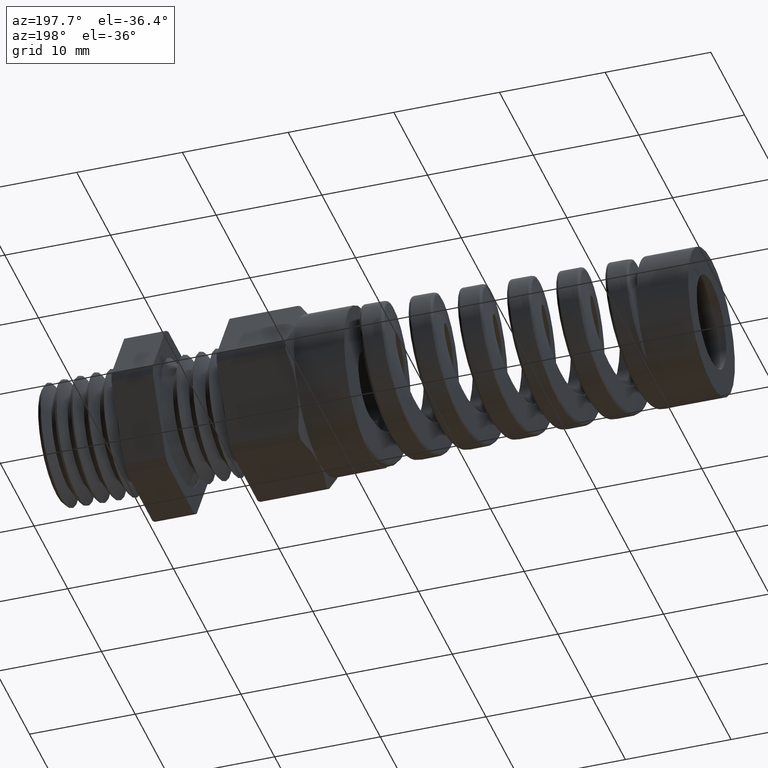
[diagram: clean part render]
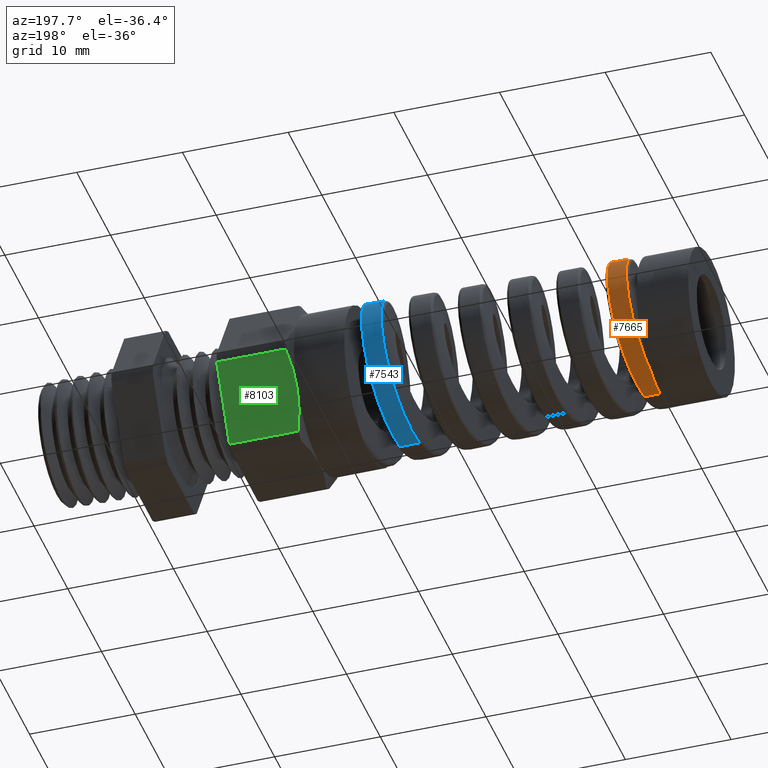
[diagram: same view with three faces highlighted in distinct colors, each labeled with its STEP entity id]
A machine part, auxiliary view with three faces highlighted in distinct colors.
Their STEP definitions:

[orange] entity #7665 — the highlighted conical surface has half-angle 1 deg.
#1151 = CARTESIAN_POINT ( 'NONE',  ( -1.938299999999999900, 0.0000000000000000000, -0.2728399223203811800 ) ) ;
#1152 = DIRECTION ( 'NONE',  ( 0.0000000000000000000, 0.0000000000000000000, -1.000000000000000000 ) ) ;
#1153 = DIRECTION ( 'NONE',  ( 1.000000000000000000, 0.0000000000000000000, 0.0000000000000000000 ) ) ;
#1154 = CARTESIAN_POINT ( 'NONE',  ( -1.938299999999999900, 0.0000000000000000000, 0.0000000000000000000 ) ) ;
#1155 = AXIS2_PLACEMENT_3D ( 'NONE', #1154, #1153, #1152 ) ;
#1156 = CIRCLE ( 'NONE', #1155, 0.2728399223203811800 ) ;
#1157 = CARTESIAN_POINT ( 'NONE',  ( -1.938299999999999900, 0.1106353233695262600, -0.2494021820969335200 ) ) ;
#1276 = CARTESIAN_POINT ( 'NONE',  ( -1.905439451678035700, 0.2738149480534820500, -0.004452913156416341000 ) ) ;
#1277 = CARTESIAN_POINT ( 'NONE',  ( -1.907066482417727900, 0.2731027601729805200, -0.01988233844168919900 ) ) ;
#1278 = CARTESIAN_POINT ( 'NONE',  ( -1.910345299395481000, 0.2690395193802520000, -0.05066431239589709600 ) ) ;
#1279 = CARTESIAN_POINT ( 'NONE',  ( -1.912002045236656600, 0.2656466173702822800, -0.06605829844452368300 ) ) ;
#1280 = CARTESIAN_POINT ( 'NONE',  ( -1.915269258079506300, 0.2564365743263465300, -0.09560825569073790100 ) ) ;
#1281 = CARTESIAN_POINT ( 'NONE',  ( -1.916895272459205700, 0.2506105983874897200, -0.1099136750738140000 ) ) ;
#1282 = CARTESIAN_POINT ( 'NONE',  ( -1.920183099516601400, 0.2364943219689890600, -0.1375709559826353800 ) ) ;
#1283 = CARTESIAN_POINT ( 'NONE',  ( -1.921849777581935400, 0.2281530634236813600, -0.1509437390107536400 ) ) ;
#1284 = CARTESIAN_POINT ( 'NONE',  ( -1.925137740178190800, 0.2095985770310637700, -0.1757126122337076000 ) ) ;
#1285 = CARTESIAN_POINT ( 'NONE',  ( -1.926774649065753100, 0.1993263578896865300, -0.1872473119326434900 ) ) ;
#1286 = CARTESIAN_POINT ( 'NONE',  ( -1.930065398501582300, 0.1767729000465227400, -0.2085965742502022300 ) ) ;
#1287 = CARTESIAN_POINT ( 'NONE',  ( -1.931725426184241400, 0.1644451075771035900, -0.2184103308346965500 ) ) ;
#1288 = CARTESIAN_POINT ( 'NONE',  ( -1.935006945431941600, 0.1385885753927455500, -0.2355996749968421500 ) ) ;
#1289 = CARTESIAN_POINT ( 'NONE',  ( -1.936642463691468500, 0.1249670026701007200, -0.2430762708889660200 ) ) ;
#1290 = CARTESIAN_POINT ( 'NONE',  ( -1.938299999999999900, 0.1106353233695262600, -0.2494021820969335200 ) ) ;
#1291 = B_SPLINE_CURVE_WITH_KNOTS ( 'NONE', 3,
 ( #1290, #1289, #1288, #1287, #1286, #1285, #1284, #1283, #1282, #1281, #1280, #1279, #1278, #1277, #1276, #1348, #1347, #1346, #1345, #1344, #1343, #1342, #1341, #1340, #1339, #1338, #1337, #1336, #1335, #1334, #1333, #1332, #1331, #1330 ),
 .UNSPECIFIED., .F., .F.,
 ( 4, 2, 2, 2, 2, 2, 2, 2, 2, 2, 2, 2, 2, 2, 2, 2, 4 ),
 ( 0.0000000000000000000, 0.001188946467293634700, 0.002377892934587269500, 0.003566839401880904500, 0.004755785869174538100, 0.005944732336468171300, 0.007133678803761806300, 0.008322625271055438700, 0.009511571738349072800, 0.01070051820564270700, 0.01188946467293634100, 0.01307841114022997700, 0.01426735760752361300, 0.01545630407481724700, 0.01664525054211088100, 0.01783419700940451800, 0.01902314347669814900 ),
 .UNSPECIFIED. ) ;
#1292 = CARTESIAN_POINT ( 'NONE',  ( -1.859537822061088300, 7.907822410224630800E-013, 0.2742147212501926900 ) ) ;
#1310 = CARTESIAN_POINT ( 'NONE',  ( -1.811052529577027200, 0.1878717124949873500, 0.2011070847209295900 ) ) ;
#1311 = CARTESIAN_POINT ( 'NONE',  ( -1.810094307678701300, 0.1811246755057290500, 0.2072261204132506700 ) ) ;
#1312 = CARTESIAN_POINT ( 'NONE',  ( -1.808197431520642200, 0.1672093267486381200, 0.2186505680430578500 ) ) ;
#1313 = CARTESIAN_POINT ( 'NONE',  ( -1.807253978716629700, 0.1600106884642199500, 0.2239902815978343200 ) ) ;
#1314 = CARTESIAN_POINT ( 'NONE',  ( -1.804424291318155800, 0.1377068756137268800, 0.2389123389785969600 ) ) ;
#1315 = CARTESIAN_POINT ( 'NONE',  ( -1.802532695116738000, 0.1218496140468363200, 0.2474293084879173300 ) ) ;
#1316 = CARTESIAN_POINT ( 'NONE',  ( -1.798708452852878300, 0.08838982860329582000, 0.2613284822181650100 ) ) ;
#1317 = CARTESIAN_POINT ( 'NONE',  ( -1.796829817295943800, 0.07124090370289538900, 0.2665339025294659600 ) ) ;
#1318 = CARTESIAN_POINT ( 'NONE',  ( -1.794004279107410400, 0.04491716905868020600, 0.2718177865085914000 ) ) ;
#1319 = CARTESIAN_POINT ( 'NONE',  ( -1.793061085595874600, 0.03604182048022972600, 0.2731553437473576700 ) ) ;
#1320 = CARTESIAN_POINT ( 'NONE',  ( -1.791161897892599800, 0.01808565047921177600, 0.2749618566264603300 ) ) ;
#1321 = CARTESIAN_POINT ( 'NONE',  ( -1.790204866449210700, 0.008994899455448721000, 0.2754249324920806100 ) ) ;
#1322 = CARTESIAN_POINT ( 'NONE',  ( -1.789257497916606000, -5.334496850974723200E-013, 0.2754414688713108200 ) ) ;
#1323 = B_SPLINE_CURVE_WITH_KNOTS ( 'NONE', 3,
 ( #1322, #1321, #1320, #1319, #1318, #1317, #1316, #1315, #1314, #1313, #1312, #1311, #1310, #1391, #1390, #1389, #1388, #1387, #1386, #1385, #1384, #1383, #1382, #1381, #1380, #1379, #1378, #1377, #1376, #1375, #1374, #1373, #1372, #1371, #1370, #1369, #1368, #1367, #1366, #1365, #1364, #1363, #1362, #1361, #1360 ),
 .UNSPECIFIED., .F., .F.,
 ( 4, 2, 2, 2, 2, 2, 2, 2, 2, 2, 2, 2, 2, 2, 2, 2, 2, 2, 2, 2, 1, 2, 4 ),
 ( 0.2322916268360479800, 0.2329790355535165100, 0.2336664442709850700, 0.2350412617059221300, 0.2364160791408592100, 0.2371034878583277400, 0.2377908965757962700, 0.2391657140107333600, 0.2405405314456704200, 0.2419153488806075100, 0.2426027575980760400, 0.2432901663155445600, 0.2446649837504816500, 0.2460398011854187100, 0.2467272099028872400, 0.2474146186203557700, 0.2487894360552928600, 0.2501642534902299200, 0.2515390709251669700, 0.2522264796426355000, 0.2529138883601040300, 0.2536012970775725600, 0.2542887057950410900 ),
 .UNSPECIFIED. ) ;
#1324 = CARTESIAN_POINT ( 'NONE',  ( -1.880397292627462800, 7.986813722271994800E-013, -0.2738506178370884200 ) ) ;
#1325 = CARTESIAN_POINT ( 'NONE',  ( -1.789257497916606000, -5.334496850974723200E-013, 0.2754414688713108200 ) ) ;
#1326 = DIRECTION ( 'NONE',  ( 0.9998476951563912700, 2.137303368083806700E-018, 0.01745240643728363700 ) ) ;
#1327 = VECTOR ( 'NONE', #1326, 39.37007874015748100 ) ;
#1328 = CARTESIAN_POINT ( 'NONE',  ( -0.6687499999999999600, 3.612708057484692000E-017, 0.2949999999999999800 ) ) ;
#1329 = LINE ( 'NONE', #1328, #1327 ) ;
#1330 = CARTESIAN_POINT ( 'NONE',  ( -1.859537822061088300, 7.907822410224630800E-013, 0.2742147212501926900 ) ) ;
#1331 = CARTESIAN_POINT ( 'NONE',  ( -1.861175974527939700, 0.01552082260280075700, 0.2741861271924767000 ) ) ;
#1332 = CARTESIAN_POINT ( 'NONE',  ( -1.862830824008591100, 0.03122685274429980200, 0.2728125112849517600 ) ) ;
#1333 = CARTESIAN_POINT ( 'NONE',  ( -1.866089015243926900, 0.06172639058723187300, 0.2675078594681791800 ) ) ;
#1334 = CARTESIAN_POINT ( 'NONE',  ( -1.867707609369112700, 0.07666657417242399300, 0.2635880724837861300 ) ) ;
#1335 = CARTESIAN_POINT ( 'NONE',  ( -1.870976404588511100, 0.1059170210809850800, 0.2531931041089889300 ) ) ;
#1336 = CARTESIAN_POINT ( 'NONE',  ( -1.872632946254698700, 0.1202679212425340800, 0.2466649614789461500 ) ) ;
#1337 = CARTESIAN_POINT ( 'NONE',  ( -1.875904344920384900, 0.1472553414256722900, 0.2315006548783594400 ) ) ;
#1338 = CARTESIAN_POINT ( 'NONE',  ( -1.877534384101424500, 0.1600340694797226000, 0.2228262120752794200 ) ) ;
#1339 = CARTESIAN_POINT ( 'NONE',  ( -1.880823423924346400, 0.1841457645961217000, 0.2032764506096124700 ) ) ;
#1340 = CARTESIAN_POINT ( 'NONE',  ( -1.882486854334295900, 0.1954987486353335100, 0.1923382218657625200 ) ) ;
#1341 = CARTESIAN_POINT ( 'NONE',  ( -1.885754506707215700, 0.2158859269032338300, 0.1690437428772035000 ) ) ;
#1342 = CARTESIAN_POINT ( 'NONE',  ( -1.887376316624851200, 0.2250413981952761900, 0.1566038538322373800 ) ) ;
#1343 = CARTESIAN_POINT ( 'NONE',  ( -1.890647547169620200, 0.2412542061332222900, 0.1301289731088685900 ) ) ;
#1344 = CARTESIAN_POINT ( 'NONE',  ( -1.892302985178216900, 0.2483083492126324200, 0.1160297350054587000 ) ) ;
#1345 = CARTESIAN_POINT ( 'NONE',  ( -1.895571032144466500, 0.2597553353178774200, 0.08726904019898709700 ) ) ;
#1346 = CARTESIAN_POINT ( 'NONE',  ( -1.897198950878898000, 0.2642349815260081600, 0.07248751448186496700 ) ) ;
#1347 = CARTESIAN_POINT ( 'NONE',  ( -1.900489152843510600, 0.2706826317505971500, 0.04211959414852168400 ) ) ;
#1348 = CARTESIAN_POINT ( 'NONE',  ( -1.902157128669427700, 0.2726257212009149900, 0.02647646281857349300 ) ) ;
#1355 = DIRECTION ( 'NONE',  ( 0.9998476951563912700, 0.0000000000000000000, -0.01745240643728363700 ) ) ;
#1356 = VECTOR ( 'NONE', #1355, 39.37007874015748100 ) ;
#1357 = CARTESIAN_POINT ( 'NONE',  ( -0.6687499999999999600, 0.0000000000000000000, -0.2949999999999999800 ) ) ;
#1358 = LINE ( 'NONE', #1357, #1356 ) ;
#1360 = CARTESIAN_POINT ( 'NONE',  ( -1.880397292627462800, 7.986813722271994800E-013, -0.2738506178370884200 ) ) ;
#1361 = CARTESIAN_POINT ( 'NONE',  ( -1.879441323907888000, 0.009035076043609370800, -0.2738673043331317800 ) ) ;
#1362 = CARTESIAN_POINT ( 'NONE',  ( -1.878480989115157900, 0.01811272896048716400, -0.2734321781817059500 ) ) ;
#1363 = CARTESIAN_POINT ( 'NONE',  ( -1.876578892180101400, 0.03599973885330767100, -0.2716899583969660800 ) ) ;
#1364 = CARTESIAN_POINT ( 'NONE',  ( -1.874685020807145500, 0.05371642535597508100, -0.2690778936579639200 ) ) ;
#1365 = CARTESIAN_POINT ( 'NONE',  ( -1.872788898941698800, 0.07109534606071302200, -0.2647510827272057100 ) ) ;
#1366 = CARTESIAN_POINT ( 'NONE',  ( -1.870883145222093500, 0.08830206603270264500, -0.2595547310777681600 ) ) ;
#1367 = CARTESIAN_POINT ( 'NONE',  ( -1.869920182362830200, 0.09686496764343990900, -0.2565017058582775800 ) ) ;
#1368 = CARTESIAN_POINT ( 'NONE',  ( -1.867048334361155500, 0.1219057775104809000, -0.2461446206404371600 ) ) ;
#1369 = CARTESIAN_POINT ( 'NONE',  ( -1.865164656478321300, 0.1376937730764256900, -0.2376998350688437300 ) ) ;
#1370 = CARTESIAN_POINT ( 'NONE',  ( -1.861377854837690900, 0.1674962788476769800, -0.2178119033904975500 ) ) ;
#1371 = CARTESIAN_POINT ( 'NONE',  ( -1.859454776228417300, 0.1816338695850374100, -0.2062183779138027100 ) ) ;
#1372 = CARTESIAN_POINT ( 'NONE',  ( -1.855654898396962300, 0.2070198263395654800, -0.1808205016198343500 ) ) ;
#1373 = CARTESIAN_POINT ( 'NONE',  ( -1.853768304886146200, 0.2183707508137006600, -0.1669937319948854600 ) ) ;
#1374 = CARTESIAN_POINT ( 'NONE',  ( -1.850910901360008000, 0.2333686985701090800, -0.1445555436720726800 ) ) ;
#1375 = CARTESIAN_POINT ( 'NONE',  ( -1.849949166933615700, 0.2380491144330648100, -0.1367462139948146500 ) ) ;
#1376 = CARTESIAN_POINT ( 'NONE',  ( -1.848042755154256600, 0.2465463270156348100, -0.1208307851533760400 ) ) ;
#1377 = CARTESIAN_POINT ( 'NONE',  ( -1.847096325490780400, 0.2503761655892540200, -0.1127152095904950100 ) ) ;
#1378 = CARTESIAN_POINT ( 'NONE',  ( -1.844261972335987700, 0.2606387988428403000, -0.08790768091900300100 ) ) ;
#1379 = CARTESIAN_POINT ( 'NONE',  ( -1.842379046258525900, 0.2658565059942549800, -0.07075934350283169500 ) ) ;
#1380 = CARTESIAN_POINT ( 'NONE',  ( -1.838547683273602700, 0.2729174784297733700, -0.03520423437921468800 ) ) ;
#1381 = CARTESIAN_POINT ( 'NONE',  ( -1.836653782690795200, 0.2746514738814182500, -0.01730868315591895700 ) ) ;
#1382 = CARTESIAN_POINT ( 'NONE',  ( -1.833815438027464300, 0.2746441262994722100, 0.009527688159592751600 ) ) ;
#1383 = CARTESIAN_POINT ( 'NONE',  ( -1.832869304493337100, 0.2742056764216260800, 0.01848173670083249800 ) ) ;
#1384 = CARTESIAN_POINT ( 'NONE',  ( -1.830967985960742400, 0.2724392305368079100, 0.03640640486281426800 ) ) ;
#1385 = CARTESIAN_POINT ( 'NONE',  ( -1.830008209651309900, 0.2710998634801948800, 0.04541717069093149900 ) ) ;
#1386 = CARTESIAN_POINT ( 'NONE',  ( -1.827157323377790200, 0.2658106516575075000, 0.07192688823668219600 ) ) ;
#1387 = CARTESIAN_POINT ( 'NONE',  ( -1.825279707286234300, 0.2606038741656432300, 0.08904664076717851200 ) ) ;
#1388 = CARTESIAN_POINT ( 'NONE',  ( -1.821492888475293700, 0.2468808426591881100, 0.1221878354856635600 ) ) ;
#1389 = CARTESIAN_POINT ( 'NONE',  ( -1.819568129171177200, 0.2382564752606451400, 0.1383190546853984600 ) ) ;
#1390 = CARTESIAN_POINT ( 'NONE',  ( -1.815779270211344900, 0.2183269064215492800, 0.1681310136171447500 ) ) ;
#1391 = CARTESIAN_POINT ( 'NONE',  ( -1.813901671323727000, 0.2069837939809914000, 0.1819725066030395400 ) ) ;
#1625 = DIRECTION ( 'NONE',  ( 0.0000000000000000000, 0.0000000000000000000, -1.000000000000000000 ) ) ;
#1626 = DIRECTION ( 'NONE',  ( 1.000000000000000000, 0.0000000000000000000, 0.0000000000000000000 ) ) ;
#1627 = CARTESIAN_POINT ( 'NONE',  ( -0.6687499999999999600, 0.0000000000000000000, 0.0000000000000000000 ) ) ;
#1628 = AXIS2_PLACEMENT_3D ( 'NONE', #1627, #1626, #1625 ) ;
#1629 = CONICAL_SURFACE ( 'NONE', #1628, 0.2949999999999999800, 0.01745329251994342000 ) ;
#1631 = FACE_OUTER_BOUND ( 'NONE', #7666, .T. ) ;
#7563 = VERTEX_POINT ( 'NONE', #1157 ) ;
#7565 = EDGE_CURVE ( 'NONE', #7566, #7563, #1156, .T. ) ;
#7566 = VERTEX_POINT ( 'NONE', #1151 ) ;
#7607 = ORIENTED_EDGE ( 'NONE', *, *, #7608, .T. ) ;
#7608 = EDGE_CURVE ( 'NONE', #7563, #7609, #1291, .T. ) ;
#7609 = VERTEX_POINT ( 'NONE', #1292 ) ;
#7610 = ORIENTED_EDGE ( 'NONE', *, *, #7611, .T. ) ;
#7611 = EDGE_CURVE ( 'NONE', #7609, #7614, #1329, .T. ) ;
#7614 = VERTEX_POINT ( 'NONE', #1325 ) ;
#7615 = ORIENTED_EDGE ( 'NONE', *, *, #7616, .T. ) ;
#7616 = EDGE_CURVE ( 'NONE', #7614, #7617, #1323, .T. ) ;
#7617 = VERTEX_POINT ( 'NONE', #1324 ) ;
#7618 = ORIENTED_EDGE ( 'NONE', *, *, #7619, .F. ) ;
#7619 = EDGE_CURVE ( 'NONE', #7566, #7617, #1358, .T. ) ;
#7620 = ORIENTED_EDGE ( 'NONE', *, *, #7565, .T. ) ;
#7665 = ADVANCED_FACE ( 'NONE', ( #1631 ), #1629, .T. ) ;
#7666 = EDGE_LOOP ( 'NONE', ( #7607, #7610, #7615, #7618, #7620 ) ) ;

[blue] entity #7543 — the highlighted conical surface has half-angle 1 deg.
#975 = CONICAL_SURFACE ( 'NONE', #1053, 0.2949999999999999800, 0.01745329251994342000 ) ;
#976 = FACE_OUTER_BOUND ( 'NONE', #7544, .T. ) ;
#1050 = DIRECTION ( 'NONE',  ( 0.0000000000000000000, 0.0000000000000000000, -1.000000000000000000 ) ) ;
#1051 = DIRECTION ( 'NONE',  ( 1.000000000000000000, 0.0000000000000000000, 0.0000000000000000000 ) ) ;
#1052 = CARTESIAN_POINT ( 'NONE',  ( -0.6687499999999999600, 0.0000000000000000000, 0.0000000000000000000 ) ) ;
#1053 = AXIS2_PLACEMENT_3D ( 'NONE', #1052, #1051, #1050 ) ;
#1215 = CARTESIAN_POINT ( 'NONE',  ( -0.9689572109277786400, 3.792663028186239900E-018, -0.2897598636413364300 ) ) ;
#1240 = DIRECTION ( 'NONE',  ( 0.9998476951563912700, 0.0000000000000000000, -0.01745240643728363700 ) ) ;
#1241 = VECTOR ( 'NONE', #1240, 39.37007874015748100 ) ;
#1242 = CARTESIAN_POINT ( 'NONE',  ( -0.6687499999999999600, 0.0000000000000000000, -0.2949999999999999800 ) ) ;
#1243 = LINE ( 'NONE', #1242, #1241 ) ;
#1244 = DIRECTION ( 'NONE',  ( 0.9998476951563912700, 2.137303368083806700E-018, 0.01745240643728363700 ) ) ;
#1245 = VECTOR ( 'NONE', #1244, 39.37007874015748100 ) ;
#1246 = CARTESIAN_POINT ( 'NONE',  ( -0.6687499999999999600, 3.612708057484692000E-017, 0.2949999999999999800 ) ) ;
#1247 = LINE ( 'NONE', #1246, #1245 ) ;
#1248 = CARTESIAN_POINT ( 'NONE',  ( -0.8778180071945355100, -9.270406533085213400E-013, 0.2913507043600062600 ) ) ;
#7507 = EDGE_CURVE ( 'NONE', #7508, #7509, #8792, .T. ) ;
#7508 = VERTEX_POINT ( 'NONE', #8793 ) ;
#7509 = VERTEX_POINT ( 'NONE', #8791 ) ;
#7517 = EDGE_CURVE ( 'NONE', #7591, #7585, #8695, .T. ) ;
#7518 = ORIENTED_EDGE ( 'NONE', *, *, #7592, .T. ) ;
#7543 = ADVANCED_FACE ( 'NONE', ( #976 ), #975, .T. ) ;
#7544 = EDGE_LOOP ( 'NONE', ( #7556, #7518, #7593, #7582 ) ) ;
#7556 = ORIENTED_EDGE ( 'NONE', *, *, #7507, .T. ) ;
#7582 = ORIENTED_EDGE ( 'NONE', *, *, #7595, .F. ) ;
#7585 = VERTEX_POINT ( 'NONE', #1215 ) ;
#7591 = VERTEX_POINT ( 'NONE', #1248 ) ;
#7592 = EDGE_CURVE ( 'NONE', #7509, #7591, #1247, .T. ) ;
#7593 = ORIENTED_EDGE ( 'NONE', *, *, #7517, .T. ) ;
#7595 = EDGE_CURVE ( 'NONE', #7508, #7585, #1243, .T. ) ;
#8651 = CARTESIAN_POINT ( 'NONE',  ( -0.9689572109277786400, 3.792663028186239900E-018, -0.2897598636413364300 ) ) ;
#8652 = CARTESIAN_POINT ( 'NONE',  ( -0.9680096248986108700, 0.009464309722969285700, -0.2897764038170005900 ) ) ;
#8653 = CARTESIAN_POINT ( 'NONE',  ( -0.9670629622379833800, 0.01892926827054985600, -0.2893303463504316400 ) ) ;
#8654 = CARTESIAN_POINT ( 'NONE',  ( -0.9651613584811730200, 0.03785947989082565100, -0.2875000267339442000 ) ) ;
#8655 = CARTESIAN_POINT ( 'NONE',  ( -0.9642012179928067800, 0.04737568413142707900, -0.2861045936396723900 ) ) ;
#8656 = CARTESIAN_POINT ( 'NONE',  ( -0.9613340549538279500, 0.07551118195094946900, -0.2805379939129435400 ) ) ;
#8657 = CARTESIAN_POINT ( 'NONE',  ( -0.9594479596328623300, 0.09364340067380096100, -0.2750404188034712400 ) ) ;
#8658 = CARTESIAN_POINT ( 'NONE',  ( -0.9556510003372242800, 0.1286835969632671700, -0.2605672371590107600 ) ) ;
#8659 = CARTESIAN_POINT ( 'NONE',  ( -0.9537199939503202600, 0.1457518686705630800, -0.2514605582394069400 ) ) ;
#8660 = CARTESIAN_POINT ( 'NONE',  ( -0.9499185753005633400, 0.1773509399723787200, -0.2303500744912158900 ) ) ;
#8661 = CARTESIAN_POINT ( 'NONE',  ( -0.9480379423426095200, 0.1919894100563697700, -0.2183462463181449500 ) ) ;
#8662 = CARTESIAN_POINT ( 'NONE',  ( -0.9451859923922226700, 0.2121908729560311700, -0.1981591960240665100 ) ) ;
#8663 = CARTESIAN_POINT ( 'NONE',  ( -0.9442249074184346800, 0.2186617527356573300, -0.1910217692051229500 ) ) ;
#8664 = CARTESIAN_POINT ( 'NONE',  ( -0.9423168809246096300, 0.2307691579107511400, -0.1762589140654732000 ) ) ;
#8665 = CARTESIAN_POINT ( 'NONE',  ( -0.9413684814935221500, 0.2364204027996005500, -0.1686272546603341200 ) ) ;
#8666 = CARTESIAN_POINT ( 'NONE',  ( -0.9385263659204885500, 0.2521950701201866600, -0.1450007606628465300 ) ) ;
#8667 = CARTESIAN_POINT ( 'NONE',  ( -0.9366353464059989900, 0.2611508221661525400, -0.1282815233130307500 ) ) ;
#8668 = CARTESIAN_POINT ( 'NONE',  ( -0.9328014999292730800, 0.2758186335297580500, -0.09283772945531776300 ) ) ;
#8669 = CARTESIAN_POINT ( 'NONE',  ( -0.9309133608031176000, 0.2813114829856099800, -0.07462138069380032400 ) ) ;
#8670 = CARTESIAN_POINT ( 'NONE',  ( -0.9280803741544640900, 0.2868403070834378800, -0.04676568671512900500 ) ) ;
#8671 = CARTESIAN_POINT ( 'NONE',  ( -0.9271350100436195300, 0.2882322168184478000, -0.03738154651096889400 ) ) ;
#8672 = CARTESIAN_POINT ( 'NONE',  ( -0.9252323198920877600, 0.2900956211703301100, -0.01841243514094401500 ) ) ;
#8673 = CARTESIAN_POINT ( 'NONE',  ( -0.9242706504513356100, 0.2905635291813761200, -0.008783908923290150900 ) ) ;
#8674 = CARTESIAN_POINT ( 'NONE',  ( -0.9214122011269283400, 0.2905395394397162200, 0.01981939351009288600 ) ) ;
#8675 = CARTESIAN_POINT ( 'NONE',  ( -0.9195263982424500800, 0.2886643766946750400, 0.03866068531046686100 ) ) ;
#8676 = CARTESIAN_POINT ( 'NONE',  ( -0.9157357173825703100, 0.2812492255228270000, 0.07588878375735519400 ) ) ;
#8677 = CARTESIAN_POINT ( 'NONE',  ( -0.9138164172117696500, 0.2756198975479612900, 0.09440934232227796200 ) ) ;
#8678 = CARTESIAN_POINT ( 'NONE',  ( -0.9100350807574395500, 0.2610728308011036100, 0.1294558248428702200 ) ) ;
#8679 = CARTESIAN_POINT ( 'NONE',  ( -0.9081562751339841100, 0.2521481841649181300, 0.1461585836607349800 ) ) ;
#8680 = CARTESIAN_POINT ( 'NONE',  ( -0.9052991314418678000, 0.2362453802917046100, 0.1699561557432267300 ) ) ;
#8681 = CARTESIAN_POINT ( 'NONE',  ( -0.9043376743120731300, 0.2305013966602181800, 0.1776950562533560500 ) ) ;
#8682 = CARTESIAN_POINT ( 'NONE',  ( -0.9024349876498511900, 0.2184094563819417600, 0.1924137702889071900 ) ) ;
#8683 = CARTESIAN_POINT ( 'NONE',  ( -0.9014888272294838700, 0.2120362366923672400, 0.1994363879160670200 ) ) ;
#8684 = CARTESIAN_POINT ( 'NONE',  ( -0.8986556042199289600, 0.1919537640044018400, 0.2195120686158311400 ) ) ;
#8685 = CARTESIAN_POINT ( 'NONE',  ( -0.8967678312821439900, 0.1772344494114560200, 0.2316200967603322400 ) ) ;
#8686 = CARTESIAN_POINT ( 'NONE',  ( -0.8929520873036517200, 0.1453650557554533000, 0.2529183474965834300 ) ) ;
#8687 = CARTESIAN_POINT ( 'NONE',  ( -0.8910729294784836000, 0.1286346892808981100, 0.2618441904799545000 ) ) ;
#8688 = CARTESIAN_POINT ( 'NONE',  ( -0.8882398323327261900, 0.1023922983422137100, 0.2727357336618419500 ) ) ;
#8689 = CARTESIAN_POINT ( 'NONE',  ( -0.8872932272009593800, 0.09345230114137939600, 0.2759470516086454700 ) ) ;
#8690 = CARTESIAN_POINT ( 'NONE',  ( -0.8853872087172697200, 0.07517823212695588800, 0.2815097115262219000 ) ) ;
#8691 = CARTESIAN_POINT ( 'NONE',  ( -0.8844274246157102200, 0.06583895814186514800, 0.2838552587381728000 ) ) ;
#8692 = CARTESIAN_POINT ( 'NONE',  ( -0.8815814841475000400, 0.03784291792884004300, 0.2894427273431789400 ) ) ;
#8693 = CARTESIAN_POINT ( 'NONE',  ( -0.8797081464761402600, 0.01900565859019384300, 0.2913177118561829900 ) ) ;
#8694 = CARTESIAN_POINT ( 'NONE',  ( -0.8778180071945355100, -9.270406533085213400E-013, 0.2913507043600062600 ) ) ;
#8695 = B_SPLINE_CURVE_WITH_KNOTS ( 'NONE', 3,
 ( #8694, #8693, #8692, #8691, #8690, #8689, #8688, #8687, #8686, #8685, #8684, #8683, #8682, #8681, #8680, #8679, #8678, #8677, #8676, #8675, #8674, #8673, #8672, #8671, #8670, #8669, #8668, #8667, #8666, #8665, #8664, #8663, #8662, #8661, #8660, #8659, #8658, #8657, #8656, #8655, #8654, #8653, #8652, #8651 ),
 .UNSPECIFIED., .F., .F.,
 ( 4, 2, 2, 2, 2, 2, 2, 2, 2, 2, 2, 2, 2, 2, 2, 2, 2, 2, 2, 2, 2, 4 ),
 ( 0.005276724071332218800, 0.006731470201554021600, 0.007458843266664922500, 0.008186216331775825200, 0.009640962461997627100, 0.01109570859221942900, 0.01182308165733032800, 0.01255045472244122700, 0.01400520085266302900, 0.01545994698288482800, 0.01691469311310662600, 0.01764206617821752500, 0.01836943924332842500, 0.01982418537355022700, 0.02127893150377202200, 0.02200630456888292400, 0.02273367763399382700, 0.02418842376421563600, 0.02564316989443744800, 0.02709791602465925300, 0.02782528908977016300, 0.02855266215488106600 ),
 .UNSPECIFIED. ) ;
#8748 = CARTESIAN_POINT ( 'NONE',  ( -0.9509666174168534000, 1.061582331348332100E-015, 0.2900738906191667700 ) ) ;
#8749 = CARTESIAN_POINT ( 'NONE',  ( -0.9528535394784578600, 0.01894958004030900300, 0.2900409542720668300 ) ) ;
#8750 = CARTESIAN_POINT ( 'NONE',  ( -0.9547211398476896900, 0.03770301786344360700, 0.2881688757655554400 ) ) ;
#8751 = CARTESIAN_POINT ( 'NONE',  ( -0.9584950806256377100, 0.07481159513546401000, 0.2807629602471969900 ) ) ;
#8752 = CARTESIAN_POINT ( 'NONE',  ( -0.9604102310847761900, 0.09323581320859779300, 0.2751553396249820600 ) ) ;
#8753 = CARTESIAN_POINT ( 'NONE',  ( -0.9641811543460469000, 0.1280942962258821700, 0.2606857663479752500 ) ) ;
#8754 = CARTESIAN_POINT ( 'NONE',  ( -0.9660537568726318400, 0.1447351541925503100, 0.2518019922875582800 ) ) ;
#8755 = CARTESIAN_POINT ( 'NONE',  ( -0.9689000058533608900, 0.1684771673078397900, 0.2359393790400632900 ) ) ;
#8756 = CARTESIAN_POINT ( 'NONE',  ( -0.9698533453092014200, 0.1761668709731106200, 0.2302316025172263800 ) ) ;
#8757 = CARTESIAN_POINT ( 'NONE',  ( -0.9717414655546624500, 0.1908007543334490900, 0.2182139594662359000 ) ) ;
#8758 = CARTESIAN_POINT ( 'NONE',  ( -0.9736213670493286700, 0.2047768492515007200, 0.2055382456545048200 ) ) ;
#8759 = CARTESIAN_POINT ( 'NONE',  ( -0.9755038797376560700, 0.2174546359168538500, 0.1915663363924563500 ) ) ;
#8760 = CARTESIAN_POINT ( 'NONE',  ( -0.9773964441660546500, 0.2294734593570040300, 0.1769377734515153200 ) ) ;
#8761 = CARTESIAN_POINT ( 'NONE',  ( -0.9783528544151126600, 0.2351809614717241000, 0.1692521888152501200 ) ) ;
#8762 = CARTESIAN_POINT ( 'NONE',  ( -0.9812093022156439500, 0.2510511202522264200, 0.1455084930351555900 ) ) ;
#8763 = CARTESIAN_POINT ( 'NONE',  ( -0.9830843103589351800, 0.2599369456546024600, 0.1288674023985016100 ) ) ;
#8764 = CARTESIAN_POINT ( 'NONE',  ( -0.9868503315297079100, 0.2744049253179857200, 0.09401011342963855300 ) ) ;
#8765 = CARTESIAN_POINT ( 'NONE',  ( -0.9887624986359571100, 0.2800095790106709700, 0.07558591996423808000 ) ) ;
#8766 = CARTESIAN_POINT ( 'NONE',  ( -0.9925438641399135800, 0.2874027839566990500, 0.03847122030578509200 ) ) ;
#8767 = CARTESIAN_POINT ( 'NONE',  ( -0.9944211740308798200, 0.2892639699002049800, 0.01971734472361200500 ) ) ;
#8768 = CARTESIAN_POINT ( 'NONE',  ( -0.9972668895560834500, 0.2892898909072848000, -0.008704577278684856200 ) ) ;
#8769 = CARTESIAN_POINT ( 'NONE',  ( -0.9982256221834012700, 0.2888273035820566600, -0.01828064252561306300 ) ) ;
#8770 = CARTESIAN_POINT ( 'NONE',  ( -1.000127186043680200, 0.2869700074464049400, -0.03720762898996135500 ) ) ;
#8771 = CARTESIAN_POINT ( 'NONE',  ( -1.001070980532884300, 0.2855819947480957600, -0.04656261006452000500 ) ) ;
#8772 = CARTESIAN_POINT ( 'NONE',  ( -1.003896701139894000, 0.2800742419107946600, -0.07430861268956913400 ) ) ;
#8773 = CARTESIAN_POINT ( 'NONE',  ( -1.005772837597368000, 0.2746236601306481500, -0.09238376785517811400 ) ) ;
#8774 = CARTESIAN_POINT ( 'NONE',  ( -1.009589851543909500, 0.2600376400794634500, -0.1276511647644931700 ) ) ;
#8775 = CARTESIAN_POINT ( 'NONE',  ( -1.011481454128805700, 0.2510815254174483800, -0.1443760638049147400 ) ) ;
#8776 = CARTESIAN_POINT ( 'NONE',  ( -1.014314952519368400, 0.2353831631039183000, -0.1678873281883068400 ) ) ;
#8777 = CARTESIAN_POINT ( 'NONE',  ( -1.015260221836831000, 0.2297639619129272800, -0.1754750845544116000 ) ) ;
#8778 = CARTESIAN_POINT ( 'NONE',  ( -1.017158930458585100, 0.2177382243085868600, -0.1901417822270743100 ) ) ;
#8779 = CARTESIAN_POINT ( 'NONE',  ( -1.018117584568710700, 0.2112951078515979100, -0.1972531781114134600 ) ) ;
#8780 = CARTESIAN_POINT ( 'NONE',  ( -1.020966936977633100, 0.1911420924235213700, -0.2173960203122339000 ) ) ;
#8781 = CARTESIAN_POINT ( 'NONE',  ( -1.022842411004802000, 0.1765601751350734100, -0.2293467323205978800 ) ) ;
#8782 = CARTESIAN_POINT ( 'NONE',  ( -1.026624590836970000, 0.1451464802392384800, -0.2503353511706897800 ) ) ;
#8783 = CARTESIAN_POINT ( 'NONE',  ( -1.028548076878227400, 0.1281455448567727600, -0.2594123429048457700 ) ) ;
#8784 = CARTESIAN_POINT ( 'NONE',  ( -1.032339411144567000, 0.09322009465254288400, -0.2738390930344922800 ) ) ;
#8785 = CARTESIAN_POINT ( 'NONE',  ( -1.034219972803797700, 0.07517803014722532200, -0.2793040213698474400 ) ) ;
#8786 = CARTESIAN_POINT ( 'NONE',  ( -1.037071327463841500, 0.04723765954961363400, -0.2848366636173511600 ) ) ;
#8787 = CARTESIAN_POINT ( 'NONE',  ( -1.038030688309324900, 0.03774220041587910600, -0.2862324853168492500 ) ) ;
#8788 = CARTESIAN_POINT ( 'NONE',  ( -1.039930056925024900, 0.01885743334322207600, -0.2880603659451971300 ) ) ;
#8789 = CARTESIAN_POINT ( 'NONE',  ( -1.040874613077509900, 0.009424056759239189000, -0.2885045407173441000 ) ) ;
#8790 = CARTESIAN_POINT ( 'NONE',  ( -1.041818979045301600, 2.118310058328366000E-018, -0.2884880567480603300 ) ) ;
#8791 = CARTESIAN_POINT ( 'NONE',  ( -0.9509666174168534000, 1.061582331348332100E-015, 0.2900738906191667700 ) ) ;
#8792 = B_SPLINE_CURVE_WITH_KNOTS ( 'NONE', 3,
 ( #8790, #8789, #8788, #8787, #8786, #8785, #8784, #8783, #8782, #8781, #8780, #8779, #8778, #8777, #8776, #8775, #8774, #8773, #8772, #8771, #8770, #8769, #8768, #8767, #8766, #8765, #8764, #8763, #8762, #8761, #8760, #8759, #8758, #8757, #8756, #8755, #8754, #8753, #8752, #8751, #8750, #8749, #8748 ),
 .UNSPECIFIED., .F., .F.,
 ( 4, 2, 2, 2, 2, 2, 2, 2, 2, 2, 2, 2, 2, 2, 2, 2, 1, 2, 2, 2, 2, 4 ),
 ( 0.2222022665251024400, 0.2229276667720183100, 0.2236530670189342000, 0.2251038675127659300, 0.2265546680065976800, 0.2280054685004294100, 0.2287308687473453000, 0.2294562689942611600, 0.2309070694880928900, 0.2323578699819246500, 0.2330832702288405100, 0.2338086704757563700, 0.2352594709695881300, 0.2367102714634198900, 0.2381610719572516100, 0.2388864722041674800, 0.2396118724510833700, 0.2403372726979992300, 0.2410626729449151200, 0.2425134734387468500, 0.2439642739325786100, 0.2454150744264103600 ),
 .UNSPECIFIED. ) ;
#8793 = CARTESIAN_POINT ( 'NONE',  ( -1.041818979045301600, 2.118310058328366000E-018, -0.2884880567480603300 ) ) ;

[green] entity #8103 — the highlighted planar face has unit normal (0, 0.866, -0.5).
#2188 = EDGE_CURVE ( 'NONE', #4135, #3575, #8315, .T. ) ;
#3575 = VERTEX_POINT ( 'NONE', #8336 ) ;
#4135 = VERTEX_POINT ( 'NONE', #8384 ) ;
#4846 = CARTESIAN_POINT ( 'NONE',  ( -0.6687499999999999600, 0.2554774941164094100, -0.1475000000000001000 ) ) ;
#4871 = DIRECTION ( 'NONE',  ( 0.0000000000000000000, 0.5000000000000002200, 0.8660254037844384900 ) ) ;
#4872 = DIRECTION ( 'NONE',  ( 0.0000000000000000000, 0.8660254037844386000, -0.5000000000000003300 ) ) ;
#4873 = CARTESIAN_POINT ( 'NONE',  ( -1.612607445236302600, 0.1810813248601901800, -0.2763579450402652800 ) ) ;
#4874 = AXIS2_PLACEMENT_3D ( 'NONE', #4873, #4872, #4871 ) ;
#4875 = PLANE ( 'NONE',  #4874 ) ;
#4876 = FACE_OUTER_BOUND ( 'NONE', #7500, .T. ) ;
#5035 = B_SPLINE_CURVE_WITH_KNOTS ( 'NONE', 3,
 ( #5090, #5089, #5088, #5087, #5086, #5085 ),
 .UNSPECIFIED., .F., .F.,
 ( 4, 2, 4 ),
 ( 0.003813694281531650300, 0.005707528494126037700, 0.007601362706720425600 ),
 .UNSPECIFIED. ) ;
#5036 = DIRECTION ( 'NONE',  ( 0.0000000000000000000, -0.5000000000000002200, -0.8660254037844384900 ) ) ;
#5037 = VECTOR ( 'NONE', #5036, 39.37007874015748900 ) ;
#5038 = CARTESIAN_POINT ( 'NONE',  ( -0.3920833333333332800, 0.3142274941164094300, -0.04574201505532850300 ) ) ;
#5043 = LINE ( 'NONE', #5038, #5037 ) ;
#5065 = CARTESIAN_POINT ( 'NONE',  ( -0.6610377494917055700, 0.2055539343404729800, -0.2339701420266237800 ) ) ;
#5066 = CARTESIAN_POINT ( 'NONE',  ( -0.6483118004706872600, 0.1810813248601902100, -0.2763579450402652800 ) ) ;
#5068 = B_SPLINE_CURVE_WITH_KNOTS ( 'NONE', 3,
 ( #5066, #5065, #5124, #5123 ),
 .UNSPECIFIED., .F., .F.,
 ( 4, 4 ),
 ( 2.361312121620371000E-007, 0.003813694281531650300 ),
 .UNSPECIFIED. ) ;
#5085 = CARTESIAN_POINT ( 'NONE',  ( -0.6483118004706872600, 0.3298736633726285800, -0.01864205495973480400 ) ) ;
#5086 = CARTESIAN_POINT ( 'NONE',  ( -0.6546447182807065800, 0.3176951591070876200, -0.03973584310784585700 ) ) ;
#5087 = CARTESIAN_POINT ( 'NONE',  ( -0.6597888758521447400, 0.3054192889189820100, -0.06099827398076484300 ) ) ;
#5088 = CARTESIAN_POINT ( 'NONE',  ( -0.6668553477117321600, 0.2806036620722652300, -0.1039802005009487600 ) ) ;
#5089 = CARTESIAN_POINT ( 'NONE',  ( -0.6687499999999996200, 0.2679795915325347600, -0.1258457320740951600 ) ) ;
#5090 = CARTESIAN_POINT ( 'NONE',  ( -0.6687499999999999600, 0.2554774941164094100, -0.1475000000000001000 ) ) ;
#5123 = CARTESIAN_POINT ( 'NONE',  ( -0.6687499999999999600, 0.2554774941164094100, -0.1475000000000001000 ) ) ;
#5124 = CARTESIAN_POINT ( 'NONE',  ( -0.6687499999999999600, 0.2303030490828604200, -0.1911034178504567900 ) ) ;
#7173 = CARTESIAN_POINT ( 'NONE',  ( -0.6483118004706872600, 0.1810813248601902100, -0.2763579450402652800 ) ) ;
#7250 = CARTESIAN_POINT ( 'NONE',  ( -0.3920833333333332800, 0.1810813248601902100, -0.2763579450402652800 ) ) ;
#7362 = EDGE_CURVE ( 'NONE', #9896, #9915, #8442, .T. ) ;
#7500 = EDGE_LOOP ( 'NONE', ( #9525, #9531, #8062, #8208, #7956 ) ) ;
#7956 = ORIENTED_EDGE ( 'NONE', *, *, #9520, .T. ) ;
#8062 = ORIENTED_EDGE ( 'NONE', *, *, #9522, .T. ) ;
#8081 = VERTEX_POINT ( 'NONE', #4846 ) ;
#8103 = ADVANCED_FACE ( 'NONE', ( #4876 ), #4875, .T. ) ;
#8208 = ORIENTED_EDGE ( 'NONE', *, *, #2188, .T. ) ;
#8308 = DIRECTION ( 'NONE',  ( 1.000000000000000000, 0.0000000000000000000, 0.0000000000000000000 ) ) ;
#8309 = VECTOR ( 'NONE', #8308, 39.37007874015748100 ) ;
#8310 = CARTESIAN_POINT ( 'NONE',  ( -1.612607445236302600, 0.3298736633726285800, -0.01864205495973480400 ) ) ;
#8315 = LINE ( 'NONE', #8310, #8309 ) ;
#8336 = CARTESIAN_POINT ( 'NONE',  ( -0.3920833333333332800, 0.3298736633726285800, -0.01864205495973480400 ) ) ;
#8384 = CARTESIAN_POINT ( 'NONE',  ( -0.6483118004706872600, 0.3298736633726285800, -0.01864205495973480400 ) ) ;
#8439 = DIRECTION ( 'NONE',  ( 1.000000000000000000, 0.0000000000000000000, 0.0000000000000000000 ) ) ;
#8440 = VECTOR ( 'NONE', #8439, 39.37007874015748100 ) ;
#8441 = CARTESIAN_POINT ( 'NONE',  ( -1.612607445236302600, 0.1810813248601902100, -0.2763579450402652800 ) ) ;
#8442 = LINE ( 'NONE', #8441, #8440 ) ;
#9520 = EDGE_CURVE ( 'NONE', #3575, #9915, #5043, .T. ) ;
#9522 = EDGE_CURVE ( 'NONE', #8081, #4135, #5035, .T. ) ;
#9525 = ORIENTED_EDGE ( 'NONE', *, *, #7362, .F. ) ;
#9530 = EDGE_CURVE ( 'NONE', #9896, #8081, #5068, .T. ) ;
#9531 = ORIENTED_EDGE ( 'NONE', *, *, #9530, .T. ) ;
#9896 = VERTEX_POINT ( 'NONE', #7173 ) ;
#9915 = VERTEX_POINT ( 'NONE', #7250 ) ;